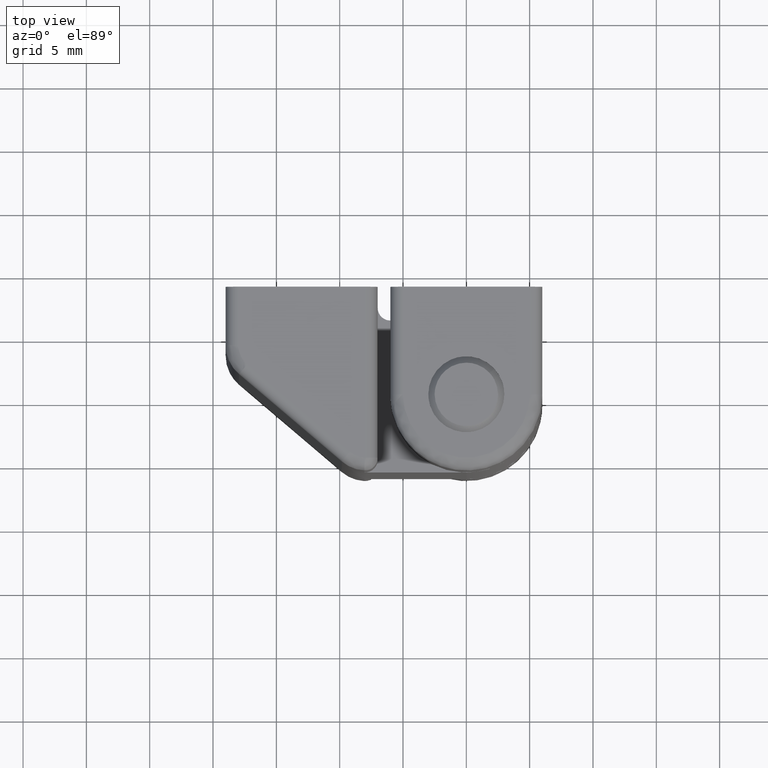
[diagram: clean part render]
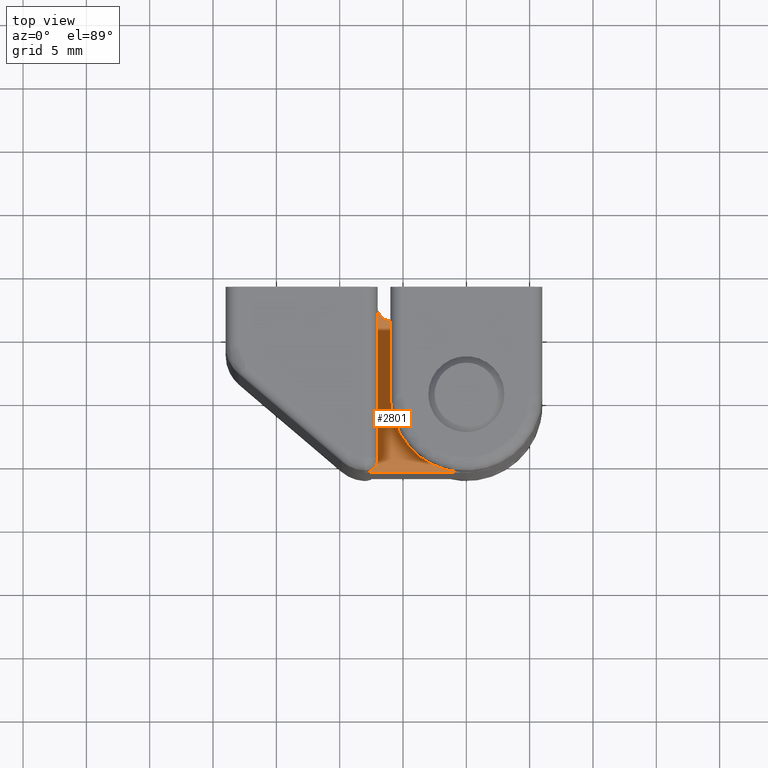
[diagram: same view with one face highlighted and labeled with its STEP entity id]
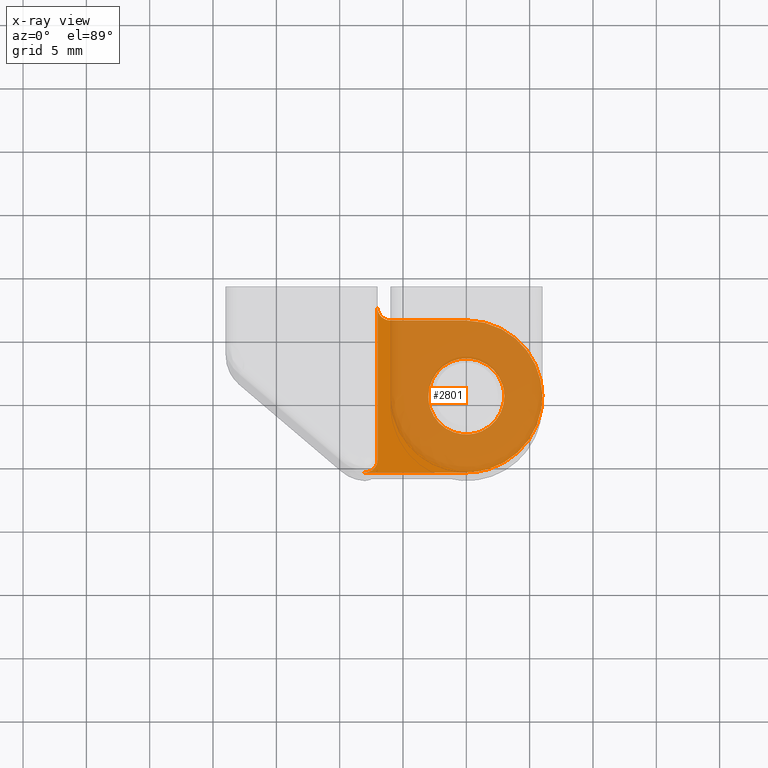
[diagram: x-ray of the same camera — body ghosted, the highlighted face saturated]
A machine part, top view. The second image highlights one B-rep face of the part: STEP entity #2801.
The next image is the same camera in x-ray: the body ghosted, the highlighted face saturated — about 80% of this face is hidden behind the body in this view.
In plain terms, the highlighted face is a freeform B-spline surface patch.
Its self-contained STEP definition (entity closure, byte-faithful):
#1079=CARTESIAN_POINT('',(3.0,0.0,39.949997000000153));
#1080=VERTEX_POINT('',#1079);
#1081=CARTESIAN_POINT('',(0.235374466001086,-2.990752223228580,39.949997000000167));
#1082=VERTEX_POINT('',#1081);
#1083=CARTESIAN_POINT('',(3.0,0.0,39.949997000000153));
#1084=CARTESIAN_POINT('',(3.000000000000001,-2.773174099002867,39.949997000000160));
#1085=CARTESIAN_POINT('',(0.235374466001086,-2.990752223228581,39.949997000000167));
#1093=(BOUNDED_CURVE()B_SPLINE_CURVE(2,(#1083,#1084,#1085),.UNSPECIFIED.,.F.,.U.)B_SPLINE_CURVE_WITH_KNOTS((3,3),(0.0,0.236331462337853),.UNSPECIFIED.)CURVE()GEOMETRIC_REPRESENTATION_ITEM()RATIONAL_B_SPLINE_CURVE((1.0,0.723120469155903,0.969723693638240))REPRESENTATION_ITEM(''));
#1094=EDGE_CURVE('',#1080,#1082,#1093,.T.);
#1096=CARTESIAN_POINT('',(-0.235374466001086,2.990752223228580,39.949997000000160));
#1097=VERTEX_POINT('',#1096);
#1098=CARTESIAN_POINT('',(-0.235374466001086,2.990752223228580,39.949997000000160));
#1099=CARTESIAN_POINT('',(-0.117868903885807,3.000000000000000,39.949997000000153));
#1100=CARTESIAN_POINT('',(0.0,3.0,39.949997000000153));
#1101=CARTESIAN_POINT('',(3.0,3.0,39.949997000000153));
#1102=CARTESIAN_POINT('',(3.0,0.0,39.949997000000153));
#1110=(BOUNDED_CURVE()B_SPLINE_CURVE(2,(#1098,#1099,#1100,#1101,#1102),.UNSPECIFIED.,.F.,.U.)B_SPLINE_CURVE_WITH_KNOTS((3,2,3),(0.736331462337854,0.750000000000000,1.0),.UNSPECIFIED.)CURVE()GEOMETRIC_REPRESENTATION_ITEM()RATIONAL_B_SPLINE_CURVE((0.969723693638240,0.983986312030644,1.0,0.707106781186548,1.0))REPRESENTATION_ITEM(''));
#1111=EDGE_CURVE('',#1097,#1080,#1110,.T.);
#1178=CARTESIAN_POINT('',(-3.0,0.0,39.949997000000153));
#1179=VERTEX_POINT('',#1178);
#1180=CARTESIAN_POINT('',(0.235374466001086,-2.990752223228581,39.949997000000167));
#1181=CARTESIAN_POINT('',(0.117868903885807,-3.000000000000000,39.949997000000153));
#1182=CARTESIAN_POINT('',(0.0,-3.0,39.949997000000153));
#1183=CARTESIAN_POINT('',(-3.0,-3.0,39.949997000000153));
#1184=CARTESIAN_POINT('',(-3.0,0.0,39.949997000000153));
#1192=(BOUNDED_CURVE()B_SPLINE_CURVE(2,(#1180,#1181,#1182,#1183,#1184),.UNSPECIFIED.,.F.,.U.)B_SPLINE_CURVE_WITH_KNOTS((3,2,3),(0.236331462337853,0.250000000000000,0.500000000000000),.UNSPECIFIED.)CURVE()GEOMETRIC_REPRESENTATION_ITEM()RATIONAL_B_SPLINE_CURVE((0.969723693638240,0.983986312030644,1.0,0.707106781186548,1.0))REPRESENTATION_ITEM(''));
#1193=EDGE_CURVE('',#1082,#1179,#1192,.T.);
#1227=CARTESIAN_POINT('',(-3.0,0.0,39.949997000000153));
#1228=CARTESIAN_POINT('',(-3.000000000000000,2.773174099002867,39.949997000000153));
#1229=CARTESIAN_POINT('',(-0.235374466001086,2.990752223228580,39.949997000000160));
#1237=(BOUNDED_CURVE()B_SPLINE_CURVE(2,(#1227,#1228,#1229),.UNSPECIFIED.,.F.,.U.)B_SPLINE_CURVE_WITH_KNOTS((3,3),(0.500000000000000,0.736331462337854),.UNSPECIFIED.)CURVE()GEOMETRIC_REPRESENTATION_ITEM()RATIONAL_B_SPLINE_CURVE((1.0,0.723120469155904,0.969723693638240))REPRESENTATION_ITEM(''));
#1238=EDGE_CURVE('',#1179,#1097,#1237,.T.);
#2288=CARTESIAN_POINT('',(3.673819E-016,-6.0,39.949997000000153));
#2289=VERTEX_POINT('',#2288);
#2290=CARTESIAN_POINT('',(-7.897269999999911,-6.0,39.949997000000153));
#2291=VERTEX_POINT('',#2290);
#2292=CARTESIAN_POINT('',(3.673819E-016,-6.0,39.949997000000153));
#2293=CARTESIAN_POINT('',(-7.897269999999911,-6.0,39.949997000000153));
#2294=QUASI_UNIFORM_CURVE('',1,(#2292,#2293),.UNSPECIFIED.,.F.,.U.);
#2295=EDGE_CURVE('',#2289,#2291,#2294,.T.);
#2337=CARTESIAN_POINT('',(0.0,6.0,39.949997000000153));
#2338=VERTEX_POINT('',#2337);
#2339=CARTESIAN_POINT('',(0.0,6.0,39.949997000000153));
#2340=CARTESIAN_POINT('',(6.0,6.0,39.949997000000153));
#2341=CARTESIAN_POINT('',(6.0,0.0,39.949997000000153));
#2342=CARTESIAN_POINT('',(6.0,-6.0,39.949997000000153));
#2343=CARTESIAN_POINT('',(0.0,-6.0,39.949997000000153));
#2351=(BOUNDED_CURVE()B_SPLINE_CURVE(2,(#2339,#2340,#2341,#2342,#2343),.UNSPECIFIED.,.F.,.U.)B_SPLINE_CURVE_WITH_KNOTS((3,2,3),(0.0,0.500000000000000,1.0),.UNSPECIFIED.)CURVE()GEOMETRIC_REPRESENTATION_ITEM()RATIONAL_B_SPLINE_CURVE((1.0,0.707106781186548,1.0,0.707106781186548,1.0))REPRESENTATION_ITEM(''));
#2352=EDGE_CURVE('',#2338,#2289,#2351,.T.);
#2385=CARTESIAN_POINT('',(-6.0,6.0,39.949997000000153));
#2386=VERTEX_POINT('',#2385);
#2387=CARTESIAN_POINT('',(-6.0,6.0,39.949997000000153));
#2388=CARTESIAN_POINT('',(0.0,6.0,39.949997000000153));
#2389=QUASI_UNIFORM_CURVE('',1,(#2387,#2388),.UNSPECIFIED.,.F.,.U.);
#2390=EDGE_CURVE('',#2386,#2338,#2389,.T.);
#2422=CARTESIAN_POINT('',(-6.999999999999901,7.0,39.949997000000153));
#2423=VERTEX_POINT('',#2422);
#2424=CARTESIAN_POINT('',(-6.0,6.0,39.949997000000153));
#2425=CARTESIAN_POINT('',(-6.999999999999999,6.0,39.949997000000153));
#2426=CARTESIAN_POINT('',(-6.999999999999901,7.0,39.949997000000153));
#2434=(BOUNDED_CURVE()B_SPLINE_CURVE(2,(#2424,#2425,#2426),.UNSPECIFIED.,.F.,.U.)CURVE()GEOMETRIC_REPRESENTATION_ITEM()QUASI_UNIFORM_CURVE()RATIONAL_B_SPLINE_CURVE((1.0,0.707106781186548,1.0))REPRESENTATION_ITEM(''));
#2435=EDGE_CURVE('',#2386,#2423,#2434,.T.);
#2581=CARTESIAN_POINT('',(-6.999999999999901,-4.997360000000001,39.949997000000153));
#2582=VERTEX_POINT('',#2581);
#2588=CARTESIAN_POINT('',(-6.999999999999901,-4.997360000000001,39.949997000000153));
#2589=CARTESIAN_POINT('',(-6.999999999999901,7.0,39.949997000000153));
#2590=QUASI_UNIFORM_CURVE('',1,(#2588,#2589),.UNSPECIFIED.,.F.,.U.);
#2591=EDGE_CURVE('',#2582,#2423,#2590,.T.);
#2694=CARTESIAN_POINT('',(-8.051364997287180,-5.996039947257220,39.949997000000153));
#2695=VERTEX_POINT('',#2694);
#2696=CARTESIAN_POINT('',(-7.897269999999911,-6.0,39.949997000000153));
#2697=CARTESIAN_POINT('',(-7.974368382896732,-5.999999999999999,39.949997000000153));
#2698=CARTESIAN_POINT('',(-8.051364997287180,-5.996039947257220,39.949997000000153));
#2706=(BOUNDED_CURVE()B_SPLINE_CURVE(2,(#2696,#2697,#2698),.UNSPECIFIED.,.F.,.U.)CURVE()GEOMETRIC_REPRESENTATION_ITEM()QUASI_UNIFORM_CURVE()RATIONAL_B_SPLINE_CURVE((1.0,0.999669932341975,1.0))REPRESENTATION_ITEM(''));
#2707=EDGE_CURVE('',#2291,#2695,#2706,.T.);
#2763=CARTESIAN_POINT('',(-6.999999999999900,-4.997360000000001,39.949997000000153));
#2764=CARTESIAN_POINT('',(-6.999999999999900,-5.426706002779887,39.949997000000160));
#2765=CARTESIAN_POINT('',(-7.311292876937883,-5.722399653152598,39.949997000000153));
#2766=CARTESIAN_POINT('',(-7.622585753875865,-6.018093303525311,39.949997000000160));
#2767=CARTESIAN_POINT('',(-8.051364997287180,-5.996039947257217,39.949997000000153));
#2775=(BOUNDED_CURVE()B_SPLINE_CURVE(2,(#2763,#2764,#2765,#2766,#2767),.UNSPECIFIED.,.F.,.U.)B_SPLINE_CURVE_WITH_KNOTS((3,2,3),(0.0,0.500000000000000,1.0),.UNSPECIFIED.)CURVE()GEOMETRIC_REPRESENTATION_ITEM()RATIONAL_B_SPLINE_CURVE((1.0,0.918887132095672,1.0,0.918887132095672,1.0))REPRESENTATION_ITEM(''));
#2776=EDGE_CURVE('',#2582,#2695,#2775,.T.);
#2781=CARTESIAN_POINT('',(-8.753230651667399,7.649349974803479,39.949997000000103));
#2782=CARTESIAN_POINT('',(6.701866031267159,7.649349974803479,39.949997000000103));
#2783=CARTESIAN_POINT('',(-8.753230651667399,-6.649350323490651,39.949997000000103));
#2784=CARTESIAN_POINT('',(6.701866031267159,-6.649350323490651,39.949997000000103));
#2785=B_SPLINE_SURFACE_WITH_KNOTS('',1,1,((#2781,#2783),(#2782,#2784)),.UNSPECIFIED.,.F.,.F.,.U.,(2,2),(2,2),(0.0,15.455096682934560),(0.0,14.298700298294129),.UNSPECIFIED.);
#2786=ORIENTED_EDGE('',*,*,#2591,.F.);
#2787=ORIENTED_EDGE('',*,*,#2776,.T.);
#2788=ORIENTED_EDGE('',*,*,#2707,.F.);
#2789=ORIENTED_EDGE('',*,*,#2295,.F.);
#2790=ORIENTED_EDGE('',*,*,#2352,.F.);
#2791=ORIENTED_EDGE('',*,*,#2390,.F.);
#2792=ORIENTED_EDGE('',*,*,#2435,.T.);
#2793=EDGE_LOOP('',(#2786,#2787,#2788,#2789,#2790,#2791,#2792));
#2794=FACE_OUTER_BOUND('',#2793,.T.);
#2795=ORIENTED_EDGE('',*,*,#1238,.T.);
#2796=ORIENTED_EDGE('',*,*,#1111,.T.);
#2797=ORIENTED_EDGE('',*,*,#1094,.T.);
#2798=ORIENTED_EDGE('',*,*,#1193,.T.);
#2799=EDGE_LOOP('',(#2795,#2796,#2797,#2798));
#2800=FACE_BOUND('',#2799,.T.);
#2801=ADVANCED_FACE('',(#2794,#2800),#2785,.F.);